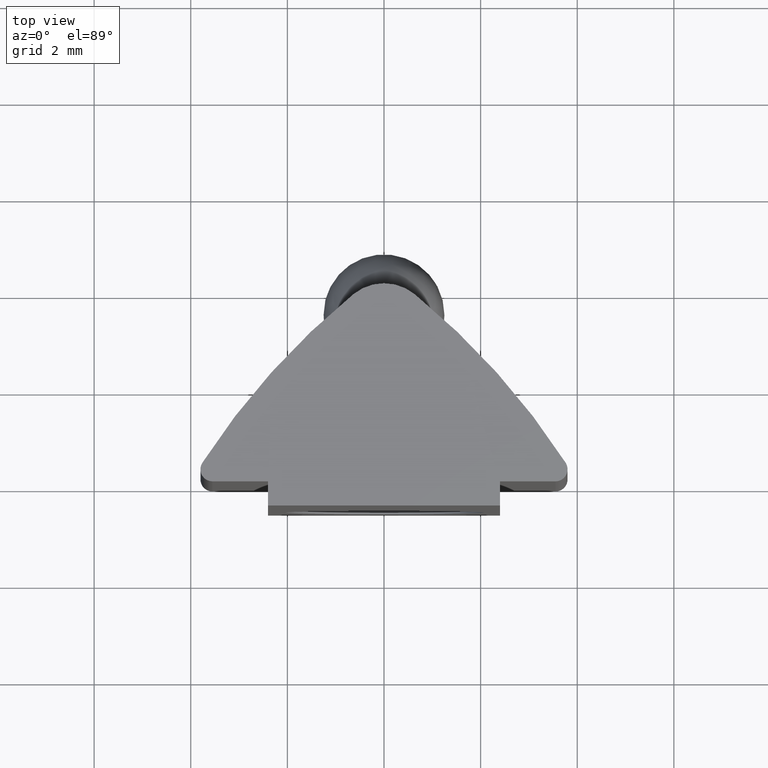
[diagram: clean part render]
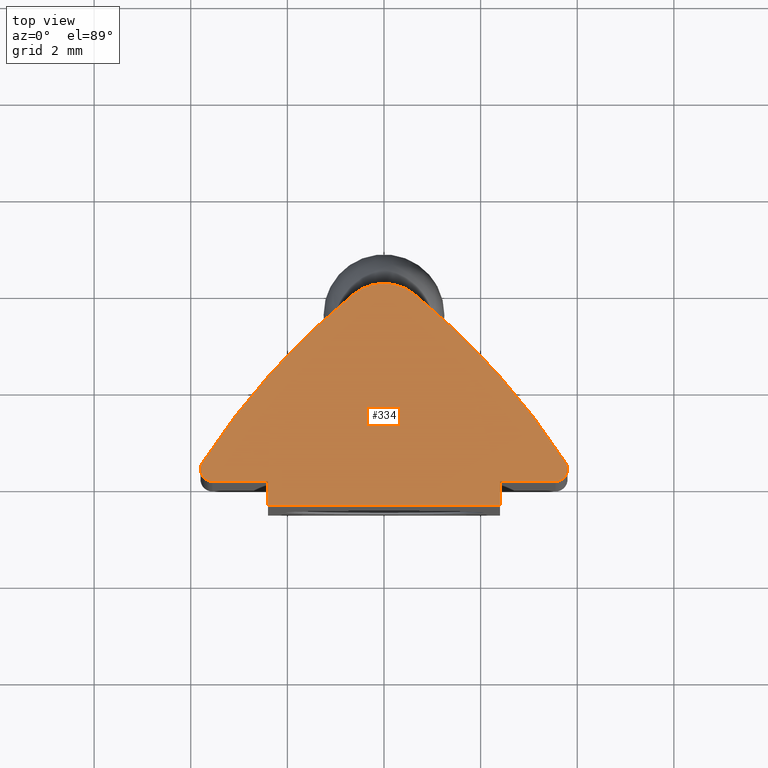
[diagram: same view with one face highlighted and labeled with its STEP entity id]
A machine part, top view. The second image highlights one B-rep face of the part: STEP entity #334.
In plain terms, the highlighted planar face has unit normal (0, 0, 1).
Its self-contained STEP definition (entity closure, byte-faithful):
#20=PLANE('',#385);
#32=LINE('',#651,#57);
#35=LINE('',#657,#60);
#38=LINE('',#663,#63);
#41=LINE('',#669,#66);
#44=LINE('',#675,#69);
#57=VECTOR('',#431,10.);
#60=VECTOR('',#436,10.);
#63=VECTOR('',#441,10.);
#66=VECTOR('',#446,10.);
#69=VECTOR('',#451,10.);
#107=FACE_OUTER_BOUND('',#125,.T.);
#125=EDGE_LOOP('',(#306,#307,#308,#309,#310,#311,#312,#313,#314,#315));
#128=CIRCLE('',#362,15.);
#130=CIRCLE('',#367,15.);
#132=CIRCLE('',#370,1.);
#135=CIRCLE('',#380,0.25);
#137=CIRCLE('',#383,0.25);
#148=VERTEX_POINT('',#570);
#149=VERTEX_POINT('',#572);
#156=VERTEX_POINT('',#631);
#157=VERTEX_POINT('',#633);
#162=VERTEX_POINT('',#648);
#163=VERTEX_POINT('',#650);
#165=VERTEX_POINT('',#656);
#167=VERTEX_POINT('',#662);
#169=VERTEX_POINT('',#668);
#171=VERTEX_POINT('',#674);
#182=EDGE_CURVE('',#149,#148,#128,.T.);
#194=EDGE_CURVE('',#157,#156,#130,.T.);
#198=EDGE_CURVE('',#156,#149,#132,.T.);
#202=EDGE_CURVE('',#163,#162,#32,.T.);
#205=EDGE_CURVE('',#165,#163,#35,.T.);
#208=EDGE_CURVE('',#167,#165,#38,.T.);
#211=EDGE_CURVE('',#169,#167,#41,.T.);
#214=EDGE_CURVE('',#171,#169,#44,.T.);
#217=EDGE_CURVE('',#148,#171,#135,.T.);
#219=EDGE_CURVE('',#162,#157,#137,.T.);
#306=ORIENTED_EDGE('',*,*,#219,.T.);
#307=ORIENTED_EDGE('',*,*,#194,.T.);
#308=ORIENTED_EDGE('',*,*,#198,.T.);
#309=ORIENTED_EDGE('',*,*,#182,.T.);
#310=ORIENTED_EDGE('',*,*,#217,.T.);
#311=ORIENTED_EDGE('',*,*,#214,.T.);
#312=ORIENTED_EDGE('',*,*,#211,.T.);
#313=ORIENTED_EDGE('',*,*,#208,.T.);
#314=ORIENTED_EDGE('',*,*,#205,.T.);
#315=ORIENTED_EDGE('',*,*,#202,.T.);
#334=ADVANCED_FACE('',(#107),#20,.T.);
#362=AXIS2_PLACEMENT_3D('',#573,#399,#400);
#367=AXIS2_PLACEMENT_3D('',#634,#413,#414);
#370=AXIS2_PLACEMENT_3D('',#641,#421,#422);
#380=AXIS2_PLACEMENT_3D('',#679,#457,#458);
#383=AXIS2_PLACEMENT_3D('',#682,#463,#464);
#385=AXIS2_PLACEMENT_3D('',#684,#467,#468);
#399=DIRECTION('center_axis',(0.,0.,1.));
#400=DIRECTION('ref_axis',(0.63114343940598,-0.775666138808953,0.));
#413=DIRECTION('center_axis',(0.,0.,1.));
#414=DIRECTION('ref_axis',(-0.839729366215846,-0.543005148700023,0.));
#421=DIRECTION('center_axis',(0.,0.,1.));
#422=DIRECTION('ref_axis',(-0.63114343940598,-0.775666138808953,0.));
#431=DIRECTION('',(1.,6.69888676308604E-33,0.));
#436=DIRECTION('',(0.,1.,0.));
#441=DIRECTION('',(1.,0.,0.));
#446=DIRECTION('',(0.,-1.,0.));
#451=DIRECTION('',(1.,0.,0.));
#457=DIRECTION('center_axis',(0.,0.,1.));
#458=DIRECTION('ref_axis',(0.839729366215846,-0.543005148700022,0.));
#463=DIRECTION('center_axis',(0.,0.,1.));
#464=DIRECTION('ref_axis',(0.,1.,0.));
#467=DIRECTION('center_axis',(0.,0.,1.));
#468=DIRECTION('ref_axis',(1.,0.,0.));
#570=CARTESIAN_POINT('',(-3.75993234155396,0.385751287175005,12.));
#572=CARTESIAN_POINT('',(-0.631143439405981,3.87566613880895,12.));
#573=CARTESIAN_POINT('Origin',(8.83600815168373,-7.75932594332533,12.));
#631=CARTESIAN_POINT('',(0.631143439405981,3.87566613880895,12.));
#633=CARTESIAN_POINT('',(3.75993234155396,0.385751287175005,12.));
#634=CARTESIAN_POINT('Origin',(-8.83600815168373,-7.75932594332533,12.));
#641=CARTESIAN_POINT('Origin',(0.,3.1,12.));
#648=CARTESIAN_POINT('',(3.55,0.,12.));
#650=CARTESIAN_POINT('',(2.4,0.,12.));
#651=CARTESIAN_POINT('',(3.55,7.70371977754894E-33,12.));
#656=CARTESIAN_POINT('',(2.4,-0.5,12.));
#657=CARTESIAN_POINT('',(2.4,0.,12.));
#662=CARTESIAN_POINT('',(-2.4,-0.5,12.));
#663=CARTESIAN_POINT('',(2.4,-0.5,12.));
#668=CARTESIAN_POINT('',(-2.4,0.,12.));
#669=CARTESIAN_POINT('',(-2.4,-0.5,12.));
#674=CARTESIAN_POINT('',(-3.55,0.,12.));
#675=CARTESIAN_POINT('',(-2.4,0.,12.));
#679=CARTESIAN_POINT('Origin',(-3.55,0.25,12.));
#682=CARTESIAN_POINT('Origin',(3.55,0.25,12.));
#684=CARTESIAN_POINT('Origin',(1.22534670947121E-16,1.0133663317219,12.));